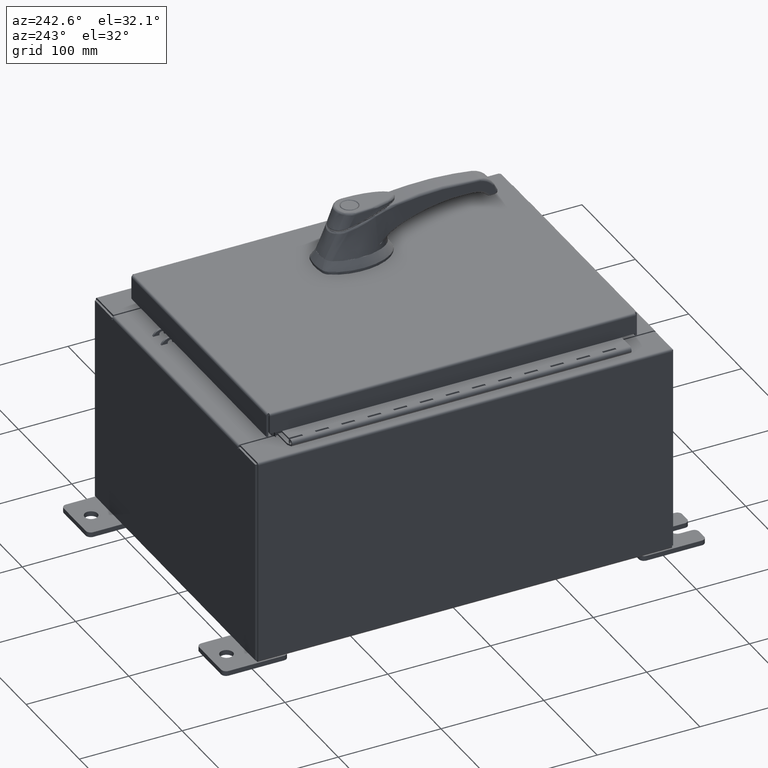
[diagram: clean part render]
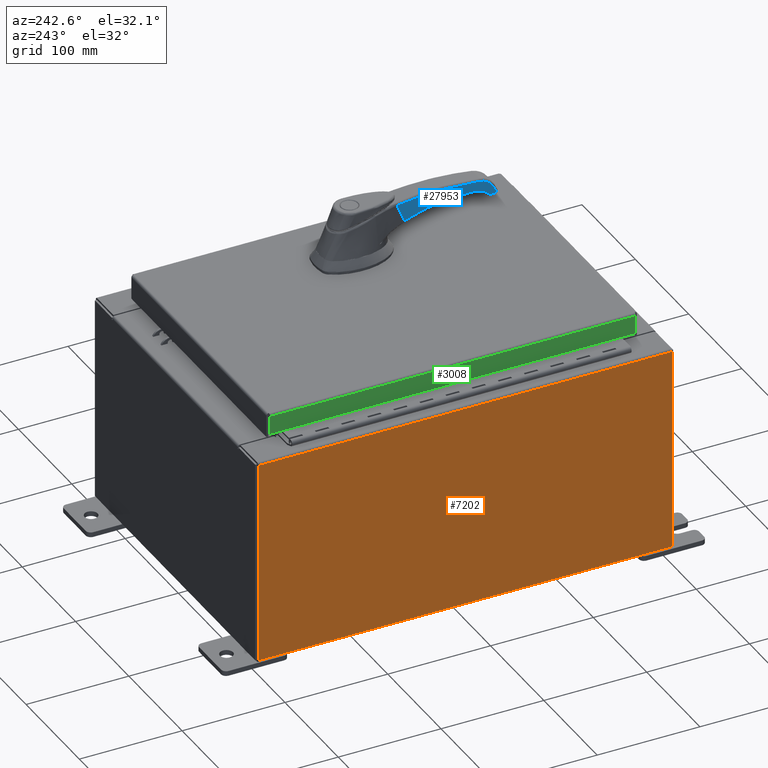
[diagram: same view with three faces highlighted in distinct colors, each labeled with its STEP entity id]
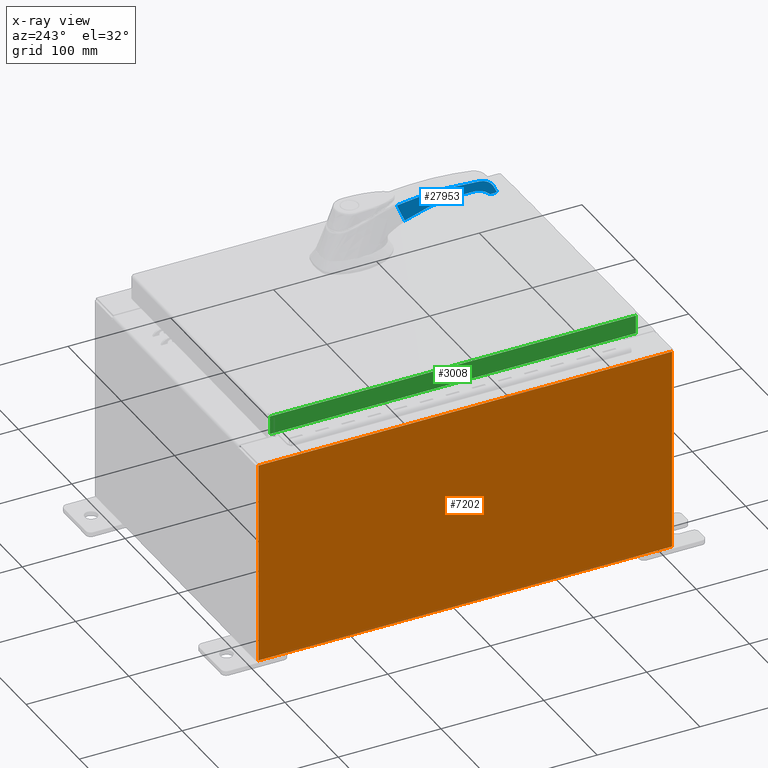
[diagram: x-ray of the same camera — body ghosted, the three highlighted faces saturated]
A machine part, auxiliary view with three faces highlighted in distinct colors.
The next image is the same camera in x-ray (body ghosted, the three faces saturated) — at least one of them is partly hidden behind the body in this view.
Their STEP definitions:

[orange] entity #7202 — the highlighted planar face has unit normal (1, 0, 0).
#852 = CARTESIAN_POINT ( 'NONE',  ( -6.000000000000029300, -7.925300000000000000, 7.837599999999999200 ) ) ;
#4560 = CARTESIAN_POINT ( 'NONE',  ( -6.000000000000029300, 7.925299999999998200, 7.837599999999999200 ) ) ;
#5957 = CARTESIAN_POINT ( 'NONE',  ( -6.000000000000001800, 7.925299999999998200, 0.01299999999999984700 ) ) ;
#7202 = ADVANCED_FACE ( 'NONE', ( #65546 ), #78758, .F. ) ;
#10077 = DIRECTION ( 'NONE',  ( 1.000000000000000000, 0.0000000000000000000, 3.446996320220386900E-015 ) ) ;
#10657 = ORIENTED_EDGE ( 'NONE', *, *, #23235, .T. ) ;
#12108 = VECTOR ( 'NONE', #17739, 39.37007874015748100 ) ;
#13289 = CARTESIAN_POINT ( 'NONE',  ( -6.000000000000001800, 0.0000000000000000000, -2.094279157733391500E-014 ) ) ;
#14094 = DIRECTION ( 'NONE',  ( 2.376356726322578400E-031, 1.000000000000000000, -6.893992640440775600E-017 ) ) ;
#15049 = LINE ( 'NONE', #16259, #34221 ) ;
#16259 = CARTESIAN_POINT ( 'NONE',  ( -6.000000000000001800, -7.925300000000000900, -1.985005237986820800E-014 ) ) ;
#17739 = DIRECTION ( 'NONE',  ( 0.0000000000000000000, 1.000000000000000000, 0.0000000000000000000 ) ) ;
#19236 = ORIENTED_EDGE ( 'NONE', *, *, #57050, .F. ) ;
#22176 = VERTEX_POINT ( 'NONE', #98655 ) ;
#23235 = EDGE_CURVE ( 'NONE', #60906, #53274, #74798, .T. ) ;
#27226 = ORIENTED_EDGE ( 'NONE', *, *, #77699, .T. ) ;
#31002 = AXIS2_PLACEMENT_3D ( 'NONE', #13289, #10077, #67192 ) ;
#34221 = VECTOR ( 'NONE', #73431, 39.37007874015748100 ) ;
#38410 = CARTESIAN_POINT ( 'NONE',  ( -6.000000000000001800, 7.925299999999998200, -2.094279157733391500E-014 ) ) ;
#47024 = ORIENTED_EDGE ( 'NONE', *, *, #66862, .T. ) ;
#47455 = CARTESIAN_POINT ( 'NONE',  ( -6.000000000000001800, 7.925299999999998200, 0.01299999999999974100 ) ) ;
#49569 = LINE ( 'NONE', #38410, #85406 ) ;
#53274 = VERTEX_POINT ( 'NONE', #4560 ) ;
#57050 = EDGE_CURVE ( 'NONE', #22176, #62201, #94124, .T. ) ;
#58481 = CARTESIAN_POINT ( 'NONE',  ( -6.000000000000029300, -7.925300000000000900, 7.837599999999999200 ) ) ;
#60906 = VERTEX_POINT ( 'NONE', #852 ) ;
#62201 = VERTEX_POINT ( 'NONE', #47455 ) ;
#65546 = FACE_OUTER_BOUND ( 'NONE', #104833, .T. ) ;
#66862 = EDGE_CURVE ( 'NONE', #22176, #60906, #15049, .T. ) ;
#67192 = DIRECTION ( 'NONE',  ( 3.446996320220386900E-015, 0.0000000000000000000, -1.000000000000000000 ) ) ;
#72368 = VECTOR ( 'NONE', #14094, 39.37007874015748100 ) ;
#73431 = DIRECTION ( 'NONE',  ( -3.446996320220387700E-015, 1.378798528088155100E-016, 1.000000000000000000 ) ) ;
#74798 = LINE ( 'NONE', #58481, #12108 ) ;
#77699 = EDGE_CURVE ( 'NONE', #53274, #62201, #49569, .T. ) ;
#78758 = PLANE ( 'NONE',  #31002 ) ;
#85406 = VECTOR ( 'NONE', #87427, 39.37007874015748100 ) ;
#87427 = DIRECTION ( 'NONE',  ( 3.446996320220387700E-015, 0.0000000000000000000, -1.000000000000000000 ) ) ;
#94124 = LINE ( 'NONE', #5957, #72368 ) ;
#98655 = CARTESIAN_POINT ( 'NONE',  ( -6.000000000000001800, -7.925300000000000900, 0.01300000000000094000 ) ) ;
#104833 = EDGE_LOOP ( 'NONE', ( #10657, #27226, #19236, #47024 ) ) ;

[blue] entity #27953 — the highlighted planar face has unit normal (-0.9997, -0.0262, 0).
#42 = CARTESIAN_POINT ( 'NONE',  ( 1.579369982001993500, -0.4179352226125441200, 1.719194243322001500 ) ) ;
#389 = CARTESIAN_POINT ( 'NONE',  ( 1.643893878337060900, -0.4162456049237760500, 1.582137094454578500 ) ) ;
#1133 = CARTESIAN_POINT ( 'NONE',  ( 5.212408452819072800, -0.3228007621579128100, 1.530968715710031800 ) ) ;
#1320 = CARTESIAN_POINT ( 'NONE',  ( 4.962652920588131300, -0.3293408409363811100, 1.281904483586347100 ) ) ;
#1463 = CARTESIAN_POINT ( 'NONE',  ( 5.411779832562479500, -0.3175800388448127800, 1.105765429011820600 ) ) ;
#1504 = CARTESIAN_POINT ( 'NONE',  ( 4.846758835518886400, -0.3323756343583363900, 1.739215436102701900 ) ) ;
#1810 = CARTESIAN_POINT ( 'NONE',  ( 5.434559669150394800, -0.3169835278305628800, 1.150788737930520200 ) ) ;
#2322 = CARTESIAN_POINT ( 'NONE',  ( 5.395139227144961000, -0.3180157884331394900, 1.248437359127190000 ) ) ;
#4009 = CARTESIAN_POINT ( 'NONE',  ( 1.562662322280722300, -0.4183727280796175600, 1.754100271247715600 ) ) ;
#4720 = ORIENTED_EDGE ( 'NONE', *, *, #59527, .T. ) ;
#5187 = CARTESIAN_POINT ( 'NONE',  ( 4.796223764405050700, -0.3336989417670147000, 1.746371229950579400 ) ) ;
#5535 = CARTESIAN_POINT ( 'NONE',  ( 3.450451277902520700, -0.3689392345485323400, 1.861523569755112700 ) ) ;
#6255 = CARTESIAN_POINT ( 'NONE',  ( 3.487341873489993500, -0.3679732203058383400, 1.408866467494142200 ) ) ;
#6312 = VERTEX_POINT ( 'NONE', #51330 ) ;
#8398 = EDGE_CURVE ( 'NONE', #84180, #91883, #90375, .T. ) ;
#8585 = CARTESIAN_POINT ( 'NONE',  ( 1.657829848378247200, -0.4158806787052868900, 1.552012839726123500 ) ) ;
#9070 = B_SPLINE_CURVE_WITH_KNOTS ( 'NONE', 3,
 ( #100223, #2322, #76224, #27241 ),
 .UNSPECIFIED., .F., .F.,
 ( 4, 4 ),
 ( 0.0000000000000000000, 1.000000000000000000 ),
 .UNSPECIFIED. ) ;
#9177 = CARTESIAN_POINT ( 'NONE',  ( 4.603380456256255500, -0.3387487215093417700, 1.402257017552953600 ) ) ;
#9205 = VERTEX_POINT ( 'NONE', #45772 ) ;
#9344 = CARTESIAN_POINT ( 'NONE',  ( 5.205857901575070600, -0.3229722943790232500, 1.537820375734004300 ) ) ;
#9499 = CARTESIAN_POINT ( 'NONE',  ( 5.025008320771610700, -0.3277080073177617800, 1.241009566716825700 ) ) ;
#9634 = CARTESIAN_POINT ( 'NONE',  ( 5.412766542191642200, -0.3175542009438518400, 1.106221448057433300 ) ) ;
#9901 = ORIENTED_EDGE ( 'NONE', *, *, #94270, .F. ) ;
#11310 = EDGE_CURVE ( 'NONE', #19067, #68535, #99593, .T. ) ;
#11845 = VERTEX_POINT ( 'NONE', #4009 ) ;
#13436 = B_SPLINE_CURVE_WITH_KNOTS ( 'NONE', 3,
 ( #74659, #17468, #42107, #99358, #50329, #1463, #58569, #9634, #66772, #17821, #74992, #26017, #83288, #34243, #91479, #42461, #99722, #50689, #1810, #58936 ),
 .UNSPECIFIED., .F., .F.,
 ( 4, 1, 1, 1, 2, 2, 2, 1, 1, 1, 2, 2, 4 ),
 ( 0.0000000000000000000, 0.1249999999998769300, 0.1874999999998377100, 0.2187499999998190300, 0.2343749999998097100, 0.2499999999998003800, 0.4999999999998754300, 0.6249999999999128500, 0.6874999999999382700, 0.7187499999999550400, 0.7343749999999610300, 0.7499999999999669200, 1.000000000000000000 ),
 .UNSPECIFIED. ) ;
#13644 = CARTESIAN_POINT ( 'NONE',  ( 2.841392512891607800, -0.3848879996001300400, 1.859469751103555800 ) ) ;
#14394 = CARTESIAN_POINT ( 'NONE',  ( 3.788933819454510600, -0.3600757572629149600, 1.425141003047085000 ) ) ;
#16751 = CARTESIAN_POINT ( 'NONE',  ( 1.700341953352679800, -0.4147674600586857000, 1.457637822105790000 ) ) ;
#16824 = CARTESIAN_POINT ( 'NONE',  ( 5.284145558221645400, -0.3209222599422410500, 1.442172933754572800 ) ) ;
#17154 = CARTESIAN_POINT ( 'NONE',  ( 5.297676707349642000, -0.3205679343324388000, 1.420544348434285000 ) ) ;
#17329 = CARTESIAN_POINT ( 'NONE',  ( 4.575459058248953600, -0.3394798690476673000, 1.404708311847453000 ) ) ;
#17468 = CARTESIAN_POINT ( 'NONE',  ( 5.398818179884673700, -0.3179194516652406600, 1.102363823353641000 ) ) ;
#17509 = CARTESIAN_POINT ( 'NONE',  ( 5.126823949838184000, -0.3250418712405077100, 1.610467165905511200 ) ) ;
#17679 = CARTESIAN_POINT ( 'NONE',  ( 5.039462476693139500, -0.3273295119244517000, 1.230622647016486700 ) ) ;
#17821 = CARTESIAN_POINT ( 'NONE',  ( 5.424500800839977500, -0.3172469285672142000, 1.113942589046301300 ) ) ;
#18091 = ORIENTED_EDGE ( 'NONE', *, *, #65933, .T. ) ;
#19067 = VERTEX_POINT ( 'NONE', #105501 ) ;
#21566 = CARTESIAN_POINT ( 'NONE',  ( 1.865198265657928200, -0.4104505455944865700, 1.054892245080375500 ) ) ;
#21895 = CARTESIAN_POINT ( 'NONE',  ( 2.503455965902153600, -0.3937371795149555700, 1.844333474637994900 ) ) ;
#22250 = CARTESIAN_POINT ( 'NONE',  ( 2.136043681780678900, -0.4033582087705137600, 1.147100694644806800 ) ) ;
#22597 = CARTESIAN_POINT ( 'NONE',  ( 3.860877118394472300, -0.3581918556794451700, 1.427219183638877000 ) ) ;
#23140 = B_SPLINE_CURVE_WITH_KNOTS ( 'NONE', 3,
 ( #5187, #103061, #86989, #37946, #95176, #46185, #103435, #54410, #5535, #62627, #13644, #70844, #21895, #79113, #30093, #87342, #38310, #95539 ),
 .UNSPECIFIED., .F., .F.,
 ( 4, 1, 1, 2, 2, 2, 1, 1, 2, 2, 4 ),
 ( 0.0000000000000000000, 0.1249999999999993300, 0.1874999999999992800, 0.2187499999999990000, 0.2499999999999987200, 0.4999999999999984500, 0.6249999999999983300, 0.6874999999999983300, 0.7187499999999982200, 0.7499999999999982200, 1.000000000000000000 ),
 .UNSPECIFIED. ) ;
#23827 = EDGE_LOOP ( 'NONE', ( #84085, #84994, #18091, #98382, #26997, #9901, #96073, #4720, #68723 ) ) ;
#24154 = CARTESIAN_POINT ( 'NONE',  ( 0.01201875559651571400, -0.4589777588985620700, 1.102362204724436600 ) ) ;
#24326 = CARTESIAN_POINT ( 'NONE',  ( 5.188159560683403400, -0.3234357417455192000, 1.103479018449335300 ) ) ;
#24616 = CARTESIAN_POINT ( 'NONE',  ( 1.624440505841804300, -0.4167550094101928300, 1.623923333709469000 ) ) ;
#24938 = CARTESIAN_POINT ( 'NONE',  ( 1.716722429040407100, -0.4143385222070610200, 1.420359565504596400 ) ) ;
#25551 = CARTESIAN_POINT ( 'NONE',  ( 4.716594132266139100, -0.3357841170687883000, 1.381253626412985300 ) ) ;
#25731 = CARTESIAN_POINT ( 'NONE',  ( 5.027252122979116500, -0.3276492512891391300, 1.672613598478906100 ) ) ;
#25889 = CARTESIAN_POINT ( 'NONE',  ( 5.090218071540584300, -0.3260004298985796400, 1.193013598777316900 ) ) ;
#26017 = CARTESIAN_POINT ( 'NONE',  ( 5.432636934853127800, -0.3170338764000692500, 1.127150124212995800 ) ) ;
#26997 = ORIENTED_EDGE ( 'NONE', *, *, #11310, .T. ) ;
#27241 = CARTESIAN_POINT ( 'NONE',  ( 5.297676707349642000, -0.3205679343324388000, 1.420544348434285000 ) ) ;
#27887 = VERTEX_POINT ( 'NONE', #83632 ) ;
#27953 = ADVANCED_FACE ( 'NONE', ( #44831 ), #35662, .T. ) ;
#30093 = CARTESIAN_POINT ( 'NONE',  ( 2.402036910936886200, -0.3963929309338964400, 1.838280141759053500 ) ) ;
#30138 = AXIS2_PLACEMENT_3D ( 'NONE', #34607, #43872, #101134 ) ;
#30475 = CARTESIAN_POINT ( 'NONE',  ( 2.425409967045300900, -0.3957808859198093100, 1.227263598866185500 ) ) ;
#30830 = CARTESIAN_POINT ( 'NONE',  ( 4.118667457582278100, -0.3514413780761809800, 1.432448994375085500 ) ) ;
#32526 = CARTESIAN_POINT ( 'NONE',  ( 5.178295286002299500, -0.3236940468686587100, 1.107763374027595800 ) ) ;
#32698 = CARTESIAN_POINT ( 'NONE',  ( 4.644924989263725700, -0.3376608396263798800, 1.396706217672485200 ) ) ;
#32812 = CARTESIAN_POINT ( 'NONE',  ( 1.639410494334776300, -0.4163630064656244100, 1.591811949677101300 ) ) ;
#33172 = CARTESIAN_POINT ( 'NONE',  ( 1.720567186239574600, -0.4142378436965910000, 1.411542438348246000 ) ) ;
#33747 = CARTESIAN_POINT ( 'NONE',  ( 4.733528111140373100, -0.3353406852261334200, 1.376852221744597500 ) ) ;
#33925 = CARTESIAN_POINT ( 'NONE',  ( 4.965051659934795600, -0.3292780277359843600, 1.700730400688408100 ) ) ;
#34104 = CARTESIAN_POINT ( 'NONE',  ( 5.170139892717847000, -0.3239076033575753500, 1.114858622675563200 ) ) ;
#34243 = CARTESIAN_POINT ( 'NONE',  ( 5.434704668621652200, -0.3169797308857810200, 1.135807073948661600 ) ) ;
#34607 = CARTESIAN_POINT ( 'NONE',  ( 0.01201875559651570600, -0.4589777588985566300, -1.092739197465705300E-014 ) ) ;
#35662 = PLANE ( 'NONE',  #30138 ) ;
#37946 = CARTESIAN_POINT ( 'NONE',  ( 4.226459910475989900, -0.3486187333589566600, 1.813212604159526200 ) ) ;
#38310 = CARTESIAN_POINT ( 'NONE',  ( 1.830296283125002000, -0.4113644861716923000, 1.790684879674285100 ) ) ;
#38680 = CARTESIAN_POINT ( 'NONE',  ( 2.494816690941148900, -0.3939634068914990600, 1.244643828527454400 ) ) ;
#39016 = CARTESIAN_POINT ( 'NONE',  ( 4.575459058248953600, -0.3394798690476673000, 1.404708311847453000 ) ) ;
#39260 = B_SPLINE_CURVE_WITH_KNOTS ( 'NONE', 3,
 ( #48267, #56519, #24326, #81558, #32526, #89782, #40750 ),
 .UNSPECIFIED., .F., .F.,
 ( 4, 3, 4 ),
 ( 0.0000000000000000000, 0.5000000000000001100, 1.000000000000000000 ),
 .UNSPECIFIED. ) ;
#40750 = CARTESIAN_POINT ( 'NONE',  ( 5.170139892717847000, -0.3239076033575753500, 1.114858622675563200 ) ) ;
#41038 = CARTESIAN_POINT ( 'NONE',  ( 1.642911367226324900, -0.4162713328826625500, 1.584259895174253700 ) ) ;
#41384 = CARTESIAN_POINT ( 'NONE',  ( 1.772367412552174200, -0.4128814070331036600, 1.292426615589791200 ) ) ;
#41786 = CARTESIAN_POINT ( 'NONE',  ( 5.262234407094996200, -0.3214960236271338100, 1.473345805858070400 ) ) ;
#41932 = CARTESIAN_POINT ( 'NONE',  ( 5.297676707349642000, -0.3205679343324388000, 1.420544348434285000 ) ) ;
#41959 = CARTESIAN_POINT ( 'NONE',  ( 4.795241008405359800, -0.3337246761385457300, 1.359861895499683100 ) ) ;
#42107 = CARTESIAN_POINT ( 'NONE',  ( 5.403284725669279500, -0.3178024910476398000, 1.102871452685637800 ) ) ;
#42148 = CARTESIAN_POINT ( 'NONE',  ( 4.949866840647726600, -0.3296756562228777600, 1.706683484577476100 ) ) ;
#42461 = CARTESIAN_POINT ( 'NONE',  ( 5.434952900611659900, -0.3169732307023594400, 1.137955061585736800 ) ) ;
#43872 = DIRECTION ( 'NONE',  ( 0.02617694830786665800, -0.9996573249755574800, -1.104405267309399700E-029 ) ) ;
#44831 = FACE_OUTER_BOUND ( 'NONE', #23827, .T. ) ;
#45772 = CARTESIAN_POINT ( 'NONE',  ( 5.432269163649482200, -0.3170435068279739400, 1.156470923341630600 ) ) ;
#46185 = CARTESIAN_POINT ( 'NONE',  ( 4.058275180073613000, -0.3530228055184071500, 1.827172151639002900 ) ) ;
#46907 = CARTESIAN_POINT ( 'NONE',  ( 2.746605878384671900, -0.3873700749771352100, 1.305412663320866500 ) ) ;
#48267 = CARTESIAN_POINT ( 'NONE',  ( 5.198911570732900800, -0.3231541904536594500, 1.102362204724441000 ) ) ;
#48465 = DIRECTION ( 'NONE',  ( 0.9996573249755573700, 0.02617694830786665400, 6.996210153178848400E-029 ) ) ;
#49251 = CARTESIAN_POINT ( 'NONE',  ( 1.643730621878867600, -0.4162498799445859500, 1.582489919076067500 ) ) ;
#49600 = CARTESIAN_POINT ( 'NONE',  ( 1.865198265657928200, -0.4104505455944865700, 1.054892245080375500 ) ) ;
#50031 = CARTESIAN_POINT ( 'NONE',  ( 5.218945708604726600, -0.3226295780906317000, 1.524008939040927900 ) ) ;
#50196 = CARTESIAN_POINT ( 'NONE',  ( 4.925239700839820300, -0.3303205405743608300, 1.302321498461083600 ) ) ;
#50329 = CARTESIAN_POINT ( 'NONE',  ( 5.410740487529742500, -0.3176072550523233500, 1.105306983267846800 ) ) ;
#50365 = CARTESIAN_POINT ( 'NONE',  ( 4.895934355496986100, -0.3310879280490660600, 1.726751879461970500 ) ) ;
#50689 = CARTESIAN_POINT ( 'NONE',  ( 5.435478110066091200, -0.3169594776087785200, 1.144906467033239000 ) ) ;
#51330 = CARTESIAN_POINT ( 'NONE',  ( 1.865198265657928200, -0.4104505455944865700, 1.054892245080375500 ) ) ;
#52219 = B_SPLINE_CURVE_WITH_KNOTS ( 'NONE', 3,
 ( #57137, #42, #73558, #24616, #81853, #32812, #90052, #41038, #98287, #49251, #389, #57511, #8585, #65699, #16751, #73919, #24938, #82195, #33172, #90399, #41384, #98656, #49600 ),
 .UNSPECIFIED., .F., .F.,
 ( 4, 1, 1, 1, 1, 1, 1, 1, 2, 2, 1, 1, 1, 1, 2, 2, 4 ),
 ( 0.0000000000000000000, 0.1250000000000267600, 0.1875000000000403600, 0.2187500000000469100, 0.2343750000000493200, 0.2421875000000499600, 0.2460937500000505400, 0.2480468750000499300, 0.2490234375000496000, 0.2500000000000492900, 0.3750000000000358000, 0.4375000000000297500, 0.4687500000000272000, 0.4843750000000259800, 0.4921875000000256500, 0.5000000000000253100, 1.000000000000000000 ),
 .UNSPECIFIED. ) ;
#54151 = EDGE_CURVE ( 'NONE', #6312, #19067, #69121, .T. ) ;
#54410 = CARTESIAN_POINT ( 'NONE',  ( 3.720888702291671500, -0.3618575813641069500, 1.851515652433147100 ) ) ;
#55165 = CARTESIAN_POINT ( 'NONE',  ( 3.315619737121574800, -0.3724699227004739100, 1.391408703630389900 ) ) ;
#56519 = CARTESIAN_POINT ( 'NONE',  ( 5.193534312655934600, -0.3232949989119199300, 1.102362204724441000 ) ) ;
#57137 = CARTESIAN_POINT ( 'NONE',  ( 1.562662322280722300, -0.4183727280796175600, 1.754100271247715600 ) ) ;
#57511 = CARTESIAN_POINT ( 'NONE',  ( 1.643949245575242200, -0.4162441550816196000, 1.582017429974402800 ) ) ;
#58255 = CARTESIAN_POINT ( 'NONE',  ( 5.208016648390411300, -0.3229157656042290200, 1.535582108366996500 ) ) ;
#58433 = CARTESIAN_POINT ( 'NONE',  ( 5.004520114460548000, -0.3282445098813162000, 1.255133123848448900 ) ) ;
#58569 = CARTESIAN_POINT ( 'NONE',  ( 5.412470275555306500, -0.3175619589587545000, 1.106081584536723100 ) ) ;
#58611 = CARTESIAN_POINT ( 'NONE',  ( 4.796223764405050700, -0.3336989417670147000, 1.746371229950579400 ) ) ;
#58936 = CARTESIAN_POINT ( 'NONE',  ( 5.432269163649482200, -0.3170435068279739400, 1.156470923341630600 ) ) ;
#59527 = EDGE_CURVE ( 'NONE', #91883, #9205, #13436, .T. ) ;
#62627 = CARTESIAN_POINT ( 'NONE',  ( 3.044340279585847000, -0.3795736252988344300, 1.862495029003571300 ) ) ;
#63129 = EDGE_CURVE ( 'NONE', #27887, #11845, #23140, .T. ) ;
#63330 = CARTESIAN_POINT ( 'NONE',  ( 3.688300484388262700, -0.3627109338822047100, 1.421075829406449800 ) ) ;
#65699 = CARTESIAN_POINT ( 'NONE',  ( 1.677914844090294500, -0.4153547345828540500, 1.507963518407085000 ) ) ;
#65933 = EDGE_CURVE ( 'NONE', #11845, #6312, #52219, .T. ) ;
#66471 = CARTESIAN_POINT ( 'NONE',  ( 5.167038257574067700, -0.3239888225321769200, 1.577522815041125800 ) ) ;
#66641 = CARTESIAN_POINT ( 'NONE',  ( 5.033693539770963500, -0.3274805768542336500, 1.234798497104127000 ) ) ;
#66772 = CARTESIAN_POINT ( 'NONE',  ( 5.419404971012598400, -0.3173803675674036200, 1.109486800366146000 ) ) ;
#68535 = VERTEX_POINT ( 'NONE', #93171 ) ;
#68723 = ORIENTED_EDGE ( 'NONE', *, *, #78204, .T. ) ;
#68859 = VERTEX_POINT ( 'NONE', #41932 ) ;
#69121 = B_SPLINE_CURVE_WITH_KNOTS ( 'NONE', 3,
 ( #21566, #71229, #22250, #79515, #30475, #87691, #38680, #95931, #46907, #104158, #55165, #6255, #63330, #14394, #71591, #22597, #79845, #30830, #88048, #39016 ),
 .UNSPECIFIED., .F., .F.,
 ( 4, 1, 1, 1, 2, 2, 2, 1, 1, 1, 2, 2, 4 ),
 ( 0.0000000000000000000, 0.1250000000000023600, 0.1875000000000033900, 0.2187500000000037700, 0.2343750000000038000, 0.2500000000000038300, 0.5000000000000020000, 0.6250000000000013300, 0.6875000000000013300, 0.7187500000000013300, 0.7343750000000013300, 0.7500000000000012200, 1.000000000000000000 ),
 .UNSPECIFIED. ) ;
#70844 = CARTESIAN_POINT ( 'NONE',  ( 2.604808650227163900, -0.3910831660723949100, 1.849795997052777100 ) ) ;
#71229 = CARTESIAN_POINT ( 'NONE',  ( 1.973007145905221200, -0.4076274707118595100, 1.093546359026666300 ) ) ;
#71591 = CARTESIAN_POINT ( 'NONE',  ( 3.832095397972285200, -0.3589455315530465900, 1.426446183039746600 ) ) ;
#73558 = CARTESIAN_POINT ( 'NONE',  ( 1.602075017722320900, -0.4173406703279461400, 1.671475281182605900 ) ) ;
#73919 = CARTESIAN_POINT ( 'NONE',  ( 1.711304161550123700, -0.4144804045346027200, 1.432741268597873100 ) ) ;
#74529 = CARTESIAN_POINT ( 'NONE',  ( 4.692802874099683700, -0.3364071130891673200, 1.386951032210788300 ) ) ;
#74659 = CARTESIAN_POINT ( 'NONE',  ( 5.395761964433690500, -0.3179994814833347300, 1.102362204724443200 ) ) ;
#74696 = CARTESIAN_POINT ( 'NONE',  ( 5.061091700976718700, -0.3267631307537598500, 1.653180530169545000 ) ) ;
#74860 = CARTESIAN_POINT ( 'NONE',  ( 5.042385945527899900, -0.3272529581988347100, 1.228480372199631600 ) ) ;
#74992 = CARTESIAN_POINT ( 'NONE',  ( 5.430347092255901000, -0.3170938380387262100, 1.122597456160240800 ) ) ;
#76224 = CARTESIAN_POINT ( 'NONE',  ( 5.350275075045015400, -0.3191905976012964800, 1.336461834158073200 ) ) ;
#78204 = EDGE_CURVE ( 'NONE', #9205, #68859, #9070, .T. ) ;
#79113 = CARTESIAN_POINT ( 'NONE',  ( 2.435896487390821100, -0.3955062867205078600, 1.840399209067785400 ) ) ;
#79515 = CARTESIAN_POINT ( 'NONE',  ( 2.328568600768277500, -0.3983167663417917500, 1.201833791088618500 ) ) ;
#79845 = CARTESIAN_POINT ( 'NONE',  ( 3.875357489891535100, -0.3578126738071303900, 1.427558849567101900 ) ) ;
#81558 = CARTESIAN_POINT ( 'NONE',  ( 5.183227423342852800, -0.3235648943070867900, 1.105621196238464600 ) ) ;
#81853 = CARTESIAN_POINT ( 'NONE',  ( 1.634592319846323700, -0.4164891748048857900, 1.602177403728607000 ) ) ;
#82195 = CARTESIAN_POINT ( 'NONE',  ( 1.719031078691578300, -0.4142780680883648700, 1.415067387106195400 ) ) ;
#82786 = CARTESIAN_POINT ( 'NONE',  ( 4.726758739140722200, -0.3355179474703888800, 1.378636206842437200 ) ) ;
#82959 = CARTESIAN_POINT ( 'NONE',  ( 4.986069071573237600, -0.3287276674432329500, 1.691919187316848900 ) ) ;
#83147 = CARTESIAN_POINT ( 'NONE',  ( 5.131864835780120900, -0.3249098709965929100, 1.155835109199133700 ) ) ;
#83288 = CARTESIAN_POINT ( 'NONE',  ( 5.434200137439441700, -0.3169929424997474100, 1.132855730642168700 ) ) ;
#83632 = CARTESIAN_POINT ( 'NONE',  ( 4.796223764405050700, -0.3336989417670147000, 1.746371229950579400 ) ) ;
#84085 = ORIENTED_EDGE ( 'NONE', *, *, #88489, .T. ) ;
#84180 = VERTEX_POINT ( 'NONE', #96400 ) ;
#84994 = ORIENTED_EDGE ( 'NONE', *, *, #63129, .T. ) ;
#86989 = CARTESIAN_POINT ( 'NONE',  ( 4.461551353213840400, -0.3424626472778376500, 1.790222166506386900 ) ) ;
#87342 = CARTESIAN_POINT ( 'NONE',  ( 2.098858991442421400, -0.4043319241552857400, 1.817993473940980900 ) ) ;
#87504 = CARTESIAN_POINT ( 'NONE',  ( 5.395761964433690500, -0.3179994814833347300, 1.102362204724443200 ) ) ;
#87691 = CARTESIAN_POINT ( 'NONE',  ( 2.467037461189003800, -0.3946908316230408600, 1.237747072104213900 ) ) ;
#87801 = VECTOR ( 'NONE', #48465, 39.37007874015748100 ) ;
#88048 = CARTESIAN_POINT ( 'NONE',  ( 4.347263863354539700, -0.3454553705236318400, 1.424736263276215300 ) ) ;
#88489 = EDGE_CURVE ( 'NONE', #68859, #27887, #91304, .T. ) ;
#89782 = CARTESIAN_POINT ( 'NONE',  ( 5.173810360600048100, -0.3238114887734862000, 1.110928919130507200 ) ) ;
#90052 = CARTESIAN_POINT ( 'NONE',  ( 1.641755148450550400, -0.4163016095368418700, 1.586756100386080400 ) ) ;
#90375 = LINE ( 'NONE', #24154, #87801 ) ;
#90399 = CARTESIAN_POINT ( 'NONE',  ( 1.721313358472558600, -0.4142183044890211400, 1.409828426558993100 ) ) ;
#90997 = CARTESIAN_POINT ( 'NONE',  ( 4.736852304631137000, -0.3352536381561037100, 1.375956415012476100 ) ) ;
#91162 = CARTESIAN_POINT ( 'NONE',  ( 4.955952936532139800, -0.3295162861933861300, 1.704326296194632600 ) ) ;
#91304 = B_SPLINE_CURVE_WITH_KNOTS ( 'NONE', 3,
 ( #17154, #16824, #41786, #99053, #50031, #1133, #58255, #9344, #66471, #17509, #74696, #25731, #82959, #33925, #91162, #42148, #99397, #50365, #1504, #58611 ),
 .UNSPECIFIED., .F., .F.,
 ( 4, 1, 1, 1, 2, 2, 2, 1, 1, 1, 2, 2, 4 ),
 ( 0.0000000000000000000, 0.1250000000000088500, 0.1875000000000138200, 0.2187500000000139900, 0.2343750000000141000, 0.2500000000000142100, 0.5000000000000030000, 0.6249999999999974500, 0.6874999999999946700, 0.7187499999999958900, 0.7343749999999941200, 0.7499999999999922300, 1.000000000000000000 ),
 .UNSPECIFIED. ) ;
#91479 = CARTESIAN_POINT ( 'NONE',  ( 5.434861524104543500, -0.3169756234804083100, 1.137093051099709000 ) ) ;
#91883 = VERTEX_POINT ( 'NONE', #87504 ) ;
#93171 = CARTESIAN_POINT ( 'NONE',  ( 5.170139892717847000, -0.3239076033575753500, 1.114858622675563200 ) ) ;
#94270 = EDGE_CURVE ( 'NONE', #84180, #68535, #39260, .T. ) ;
#95176 = CARTESIAN_POINT ( 'NONE',  ( 4.125567585503076500, -0.3512606918676297600, 1.821762134555542400 ) ) ;
#95539 = CARTESIAN_POINT ( 'NONE',  ( 1.562662322280722300, -0.4183727280796175600, 1.754100271247715600 ) ) ;
#95931 = CARTESIAN_POINT ( 'NONE',  ( 2.508639233227380100, -0.3936014508833052800, 1.248026595286694900 ) ) ;
#96073 = ORIENTED_EDGE ( 'NONE', *, *, #8398, .T. ) ;
#96400 = CARTESIAN_POINT ( 'NONE',  ( 5.198911570732900800, -0.3231541904536594500, 1.102362204724441000 ) ) ;
#98287 = CARTESIAN_POINT ( 'NONE',  ( 1.643485449543684400, -0.4162563000081259700, 1.583019722426760100 ) ) ;
#98382 = ORIENTED_EDGE ( 'NONE', *, *, #54151, .T. ) ;
#98656 = CARTESIAN_POINT ( 'NONE',  ( 1.820067232618682400, -0.4116323432859779800, 1.174716615665981000 ) ) ;
#99053 = CARTESIAN_POINT ( 'NONE',  ( 5.233846149436589100, -0.3222393963156626200, 1.507491646360762400 ) ) ;
#99224 = CARTESIAN_POINT ( 'NONE',  ( 4.848377189913945200, -0.3323332562570761600, 1.339782375009753700 ) ) ;
#99358 = CARTESIAN_POINT ( 'NONE',  ( 5.408289585315549700, -0.3176714341854778900, 1.104347789335566200 ) ) ;
#99397 = CARTESIAN_POINT ( 'NONE',  ( 4.946738822391997000, -0.3297575662635894900, 1.707869852563760800 ) ) ;
#99593 = B_SPLINE_CURVE_WITH_KNOTS ( 'NONE', 3,
 ( #17329, #9177, #32698, #74529, #25551, #82786, #33747, #90997, #41959, #99224, #50196, #1320, #58433, #9499, #66641, #17679, #74860, #25889, #83147, #34104 ),
 .UNSPECIFIED., .F., .F.,
 ( 4, 1, 1, 1, 2, 2, 2, 1, 1, 1, 2, 2, 4 ),
 ( 0.0000000000000000000, 0.1249999999999916700, 0.1874999999999875100, 0.2187499999999852900, 0.2343749999999843500, 0.2499999999999833500, 0.4999999999999909000, 0.6249999999999933400, 0.6874999999999965600, 0.7187499999999983300, 0.7343749999999994400, 0.7500000000000006700, 1.000000000000000000 ),
 .UNSPECIFIED. ) ;
#99722 = CARTESIAN_POINT ( 'NONE',  ( 5.434996134917220400, -0.3169720985722250300, 1.138443963375789900 ) ) ;
#100223 = CARTESIAN_POINT ( 'NONE',  ( 5.432269163649482200, -0.3170435068279739400, 1.156470923341630600 ) ) ;
#101134 = DIRECTION ( 'NONE',  ( 0.9996573249755573700, 0.02617694830786665400, 6.996210153178848400E-029 ) ) ;
#103061 = CARTESIAN_POINT ( 'NONE',  ( 4.662502906076655400, -0.3372005456753669500, 1.765302019839524400 ) ) ;
#103435 = CARTESIAN_POINT ( 'NONE',  ( 4.024692465120520700, -0.3539021998582488300, 1.829726665391452600 ) ) ;
#104158 = CARTESIAN_POINT ( 'NONE',  ( 2.972879599777250400, -0.3814448890555824400, 1.347169713889088600 ) ) ;
#105501 = CARTESIAN_POINT ( 'NONE',  ( 4.575459058248953600, -0.3394798690476673000, 1.404708311847453000 ) ) ;

[green] entity #3008 — the highlighted planar face has unit normal (1, 0, -0).
#506 = LINE ( 'NONE', #66678, #84852 ) ;
#706 = CARTESIAN_POINT ( 'NONE',  ( -5.078000000000001200, -1.928299580014057100E-030, 1.566808741619720900E-014 ) ) ;
#1429 = DIRECTION ( 'NONE',  ( -3.034122441942816500E-015, 0.0000000000000000000, -1.000000000000000000 ) ) ;
#3008 = ADVANCED_FACE ( 'NONE', ( #87709 ), #42066, .F. ) ;
#4300 = VERTEX_POINT ( 'NONE', #11741 ) ;
#6199 = EDGE_CURVE ( 'NONE', #95794, #94860, #506, .T. ) ;
#6472 = ORIENTED_EDGE ( 'NONE', *, *, #84174, .F. ) ;
#11741 = CARTESIAN_POINT ( 'NONE',  ( -5.078000000000001200, 7.005157864376269700, -0.08770000000000004200 ) ) ;
#14082 = EDGE_LOOP ( 'NONE', ( #80618, #93406, #6472, #98603 ) ) ;
#14300 = CARTESIAN_POINT ( 'NONE',  ( -5.078000000000001200, -7.094000000000000300, -0.08770000000000004200 ) ) ;
#17735 = DIRECTION ( 'NONE',  ( -3.034122441942816500E-015, 6.982962677686265900E-015, -1.000000000000000000 ) ) ;
#20334 = CARTESIAN_POINT ( 'NONE',  ( -5.078000000000003000, 7.005157864376276000, -0.7949999999999979300 ) ) ;
#22494 = DIRECTION ( 'NONE',  ( 3.797360338743712300E-031, -1.000000000000000000, -1.119390514946887900E-045 ) ) ;
#29078 = VECTOR ( 'NONE', #74874, 39.37007874015748100 ) ;
#30945 = CARTESIAN_POINT ( 'NONE',  ( -5.078000000000003000, -7.094000000000000300, -0.7949999999999997100 ) ) ;
#36007 = CARTESIAN_POINT ( 'NONE',  ( -5.078000000000001200, -7.005157864376269700, -0.08770000000000007000 ) ) ;
#42066 = PLANE ( 'NONE',  #100744 ) ;
#47387 = DIRECTION ( 'NONE',  ( 4.379057701015054300E-047, 1.000000000000000000, 1.251551449028595500E-016 ) ) ;
#50302 = DIRECTION ( 'NONE',  ( 1.000000000000000000, 3.797360338743711400E-031, -3.034122441942816500E-015 ) ) ;
#59366 = EDGE_CURVE ( 'NONE', #4300, #95794, #90057, .T. ) ;
#66653 = CARTESIAN_POINT ( 'NONE',  ( -5.078000000000001200, 7.005157864376269700, 6.458484333443713300E-014 ) ) ;
#66678 = CARTESIAN_POINT ( 'NONE',  ( -5.078000000000001200, -7.005157864376269700, -0.07469999999999976700 ) ) ;
#74874 = DIRECTION ( 'NONE',  ( -3.034122441942816500E-015, 6.982962677686265900E-015, -1.000000000000000000 ) ) ;
#76362 = VECTOR ( 'NONE', #47387, 39.37007874015748100 ) ;
#78954 = LINE ( 'NONE', #30945, #76362 ) ;
#80618 = ORIENTED_EDGE ( 'NONE', *, *, #59366, .F. ) ;
#84174 = EDGE_CURVE ( 'NONE', #94860, #97695, #78954, .T. ) ;
#84852 = VECTOR ( 'NONE', #17735, 39.37007874015748100 ) ;
#87495 = VECTOR ( 'NONE', #22494, 39.37007874015748100 ) ;
#87709 = FACE_OUTER_BOUND ( 'NONE', #14082, .T. ) ;
#90057 = LINE ( 'NONE', #14300, #87495 ) ;
#91801 = LINE ( 'NONE', #66653, #29078 ) ;
#93406 = ORIENTED_EDGE ( 'NONE', *, *, #96232, .T. ) ;
#94860 = VERTEX_POINT ( 'NONE', #96102 ) ;
#95794 = VERTEX_POINT ( 'NONE', #36007 ) ;
#96102 = CARTESIAN_POINT ( 'NONE',  ( -5.078000000000003000, -7.005157864376264400, -0.7949999999999996000 ) ) ;
#96232 = EDGE_CURVE ( 'NONE', #4300, #97695, #91801, .T. ) ;
#97695 = VERTEX_POINT ( 'NONE', #20334 ) ;
#98603 = ORIENTED_EDGE ( 'NONE', *, *, #6199, .F. ) ;
#100744 = AXIS2_PLACEMENT_3D ( 'NONE', #706, #50302, #1429 ) ;